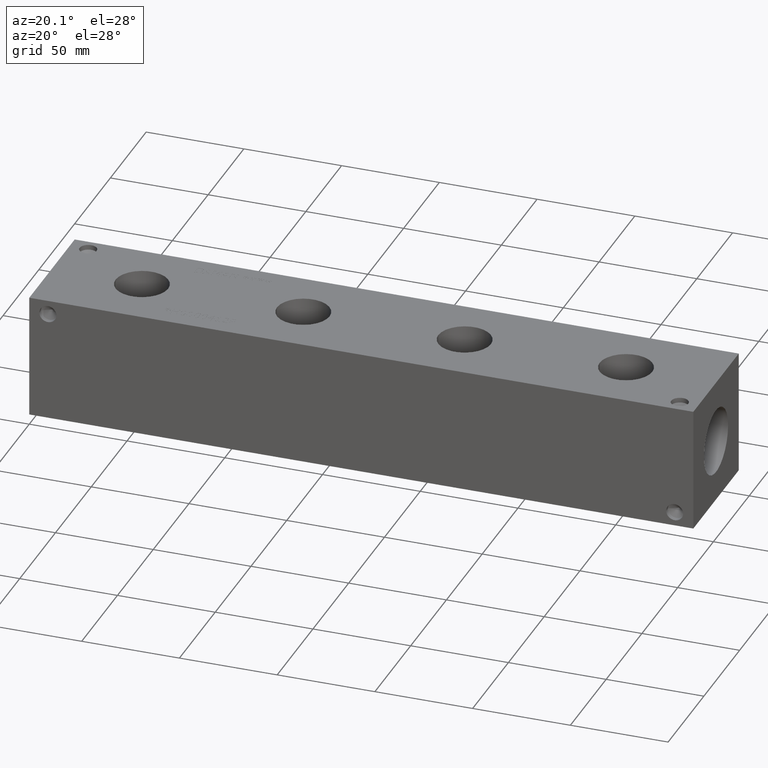
[diagram: clean part render]
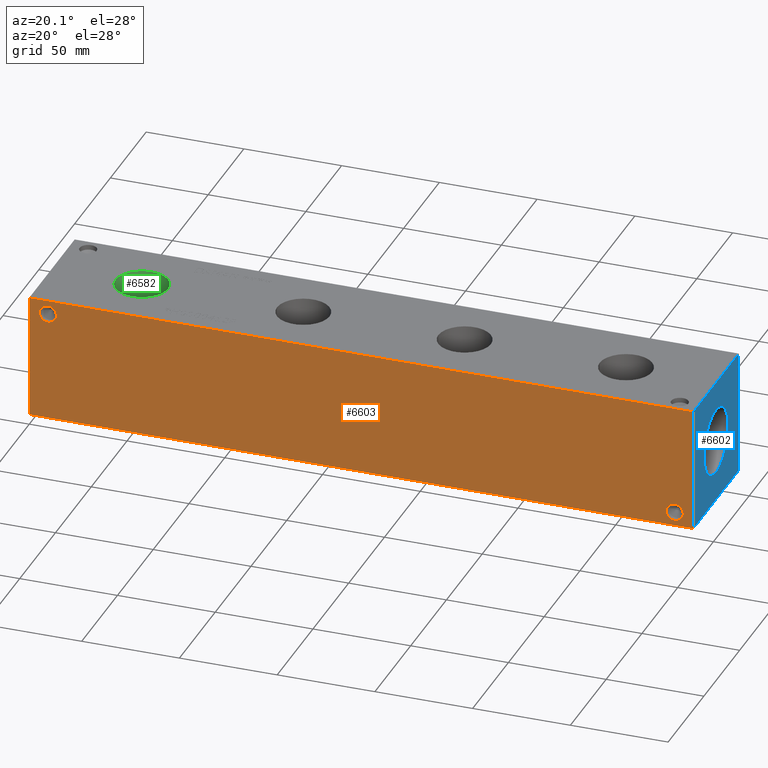
[diagram: same view with three faces highlighted in distinct colors, each labeled with its STEP entity id]
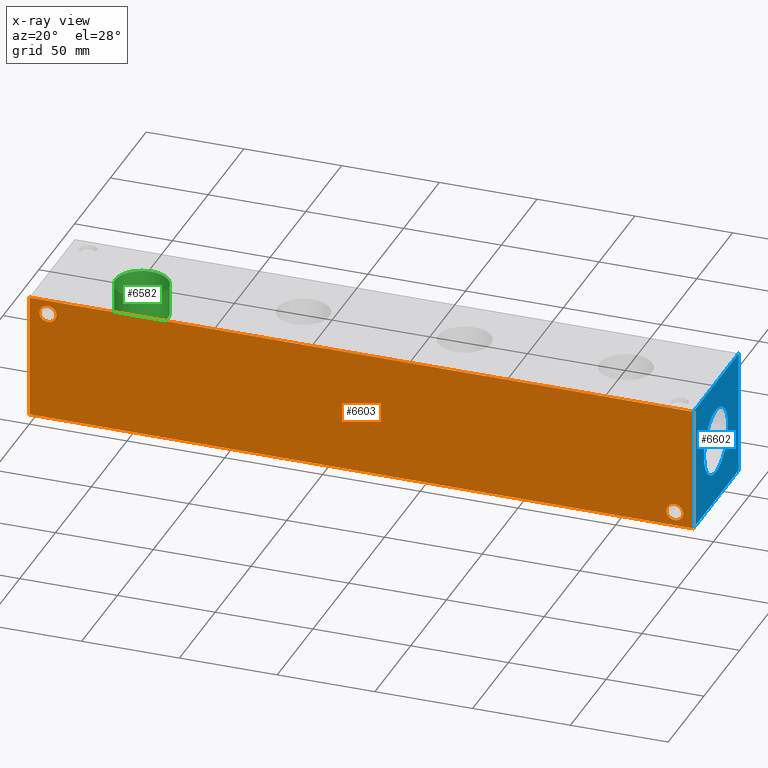
[diagram: x-ray of the same camera — body ghosted, the three highlighted faces saturated]
A machine part, auxiliary view with three faces highlighted in distinct colors.
The next image is the same camera in x-ray (body ghosted, the three faces saturated) — at least one of them is partly hidden behind the body in this view.
Their STEP definitions:

[orange] entity #6603 — the highlighted planar face has unit normal (0, -1, 0).
#54=CIRCLE('',#6855,4.3688);
#55=CIRCLE('',#6856,4.3688);
#58=CIRCLE('',#6861,4.3688);
#59=CIRCLE('',#6862,4.3688);
#140=FACE_BOUND('',#1079,.T.);
#141=FACE_BOUND('',#1080,.T.);
#370=PLANE('',#6932);
#703=FACE_OUTER_BOUND('',#1078,.T.);
#1078=EDGE_LOOP('',(#5895,#5896,#5897,#5898));
#1079=EDGE_LOOP('',(#5899,#5900));
#1080=EDGE_LOOP('',(#5901,#5902));
#1355=LINE('',#9968,#2042);
#1763=LINE('',#11069,#2450);
#1768=LINE('',#11078,#2455);
#1769=LINE('',#11080,#2456);
#2042=VECTOR('',#7367,10.);
#2450=VECTOR('',#8237,10.);
#2455=VECTOR('',#8246,10.);
#2456=VECTOR('',#8249,10.);
#2881=VERTEX_POINT('',#9966);
#2882=VERTEX_POINT('',#9967);
#3162=VERTEX_POINT('',#10913);
#3163=VERTEX_POINT('',#10914);
#3167=VERTEX_POINT('',#10926);
#3168=VERTEX_POINT('',#10927);
#3216=VERTEX_POINT('',#11067);
#3218=VERTEX_POINT('',#11076);
#3627=EDGE_CURVE('',#2881,#2882,#1355,.T.);
#4039=EDGE_CURVE('',#3162,#3163,#54,.T.);
#4040=EDGE_CURVE('',#3163,#3162,#55,.T.);
#4045=EDGE_CURVE('',#3167,#3168,#58,.T.);
#4046=EDGE_CURVE('',#3168,#3167,#59,.T.);
#4109=EDGE_CURVE('',#3216,#2881,#1763,.T.);
#4114=EDGE_CURVE('',#3218,#2882,#1768,.T.);
#4115=EDGE_CURVE('',#3216,#3218,#1769,.T.);
#5895=ORIENTED_EDGE('',*,*,#4115,.T.);
#5896=ORIENTED_EDGE('',*,*,#4114,.T.);
#5897=ORIENTED_EDGE('',*,*,#3627,.F.);
#5898=ORIENTED_EDGE('',*,*,#4109,.F.);
#5899=ORIENTED_EDGE('',*,*,#4039,.T.);
#5900=ORIENTED_EDGE('',*,*,#4040,.T.);
#5901=ORIENTED_EDGE('',*,*,#4045,.T.);
#5902=ORIENTED_EDGE('',*,*,#4046,.T.);
#6603=ADVANCED_FACE('',(#703,#140,#141),#370,.T.);
#6855=AXIS2_PLACEMENT_3D('',#10915,#8061,#8062);
#6856=AXIS2_PLACEMENT_3D('',#10916,#8063,#8064);
#6861=AXIS2_PLACEMENT_3D('',#10928,#8075,#8076);
#6862=AXIS2_PLACEMENT_3D('',#10929,#8077,#8078);
#6932=AXIS2_PLACEMENT_3D('',#11079,#8247,#8248);
#7367=DIRECTION('',(1.,0.,0.));
#8061=DIRECTION('center_axis',(0.,1.,0.));
#8062=DIRECTION('ref_axis',(1.,0.,0.));
#8063=DIRECTION('center_axis',(0.,1.,0.));
#8064=DIRECTION('ref_axis',(1.,0.,0.));
#8075=DIRECTION('center_axis',(0.,1.,0.));
#8076=DIRECTION('ref_axis',(1.,0.,0.));
#8077=DIRECTION('center_axis',(0.,1.,0.));
#8078=DIRECTION('ref_axis',(1.,0.,0.));
#8237=DIRECTION('',(0.,0.,1.));
#8246=DIRECTION('',(0.,0.,1.));
#8247=DIRECTION('center_axis',(0.,-1.,0.));
#8248=DIRECTION('ref_axis',(1.,0.,0.));
#8249=DIRECTION('',(1.,0.,0.));
#9966=CARTESIAN_POINT('',(0.,0.,63.5));
#9967=CARTESIAN_POINT('',(339.725,0.,63.5));
#9968=CARTESIAN_POINT('',(0.,0.,63.5));
#10913=CARTESIAN_POINT('',(13.8938,0.,56.3626));
#10914=CARTESIAN_POINT('',(5.1562,0.,56.3626));
#10915=CARTESIAN_POINT('Origin',(9.525,0.,56.3626));
#10916=CARTESIAN_POINT('Origin',(9.525,0.,56.3626));
#10926=CARTESIAN_POINT('',(334.5688,0.,7.1374));
#10927=CARTESIAN_POINT('',(325.8312,0.,7.1374));
#10928=CARTESIAN_POINT('Origin',(330.2,0.,7.1374));
#10929=CARTESIAN_POINT('Origin',(330.2,0.,7.1374));
#11067=CARTESIAN_POINT('',(0.,0.,0.));
#11069=CARTESIAN_POINT('',(0.,0.,0.));
#11076=CARTESIAN_POINT('',(339.725,0.,0.));
#11078=CARTESIAN_POINT('',(339.725,0.,0.));
#11079=CARTESIAN_POINT('Origin',(0.,0.,0.));
#11080=CARTESIAN_POINT('',(0.,0.,0.));

[blue] entity #6602 — the highlighted planar face has unit normal (1, 0, 0).
#89=CIRCLE('',#6915,16.8529);
#90=CIRCLE('',#6916,16.8529);
#139=FACE_BOUND('',#1077,.T.);
#369=PLANE('',#6931);
#702=FACE_OUTER_BOUND('',#1076,.T.);
#1076=EDGE_LOOP('',(#5889,#5890,#5891,#5892));
#1077=EDGE_LOOP('',(#5893,#5894));
#1356=LINE('',#9970,#2043);
#1766=LINE('',#11074,#2453);
#1767=LINE('',#11077,#2454);
#1768=LINE('',#11078,#2455);
#2043=VECTOR('',#7368,10.);
#2453=VECTOR('',#8242,10.);
#2454=VECTOR('',#8245,10.);
#2455=VECTOR('',#8246,10.);
#2882=VERTEX_POINT('',#9967);
#2883=VERTEX_POINT('',#9969);
#3205=VERTEX_POINT('',#11036);
#3206=VERTEX_POINT('',#11037);
#3217=VERTEX_POINT('',#11072);
#3218=VERTEX_POINT('',#11076);
#3628=EDGE_CURVE('',#2882,#2883,#1356,.T.);
#4094=EDGE_CURVE('',#3205,#3206,#89,.T.);
#4095=EDGE_CURVE('',#3206,#3205,#90,.T.);
#4112=EDGE_CURVE('',#3217,#2883,#1766,.T.);
#4113=EDGE_CURVE('',#3218,#3217,#1767,.T.);
#4114=EDGE_CURVE('',#3218,#2882,#1768,.T.);
#5889=ORIENTED_EDGE('',*,*,#4113,.T.);
#5890=ORIENTED_EDGE('',*,*,#4112,.T.);
#5891=ORIENTED_EDGE('',*,*,#3628,.F.);
#5892=ORIENTED_EDGE('',*,*,#4114,.F.);
#5893=ORIENTED_EDGE('',*,*,#4094,.T.);
#5894=ORIENTED_EDGE('',*,*,#4095,.T.);
#6602=ADVANCED_FACE('',(#702,#139),#369,.T.);
#6915=AXIS2_PLACEMENT_3D('',#11038,#8201,#8202);
#6916=AXIS2_PLACEMENT_3D('',#11039,#8203,#8204);
#6931=AXIS2_PLACEMENT_3D('',#11075,#8243,#8244);
#7368=DIRECTION('',(0.,1.,0.));
#8201=DIRECTION('center_axis',(-1.,0.,0.));
#8202=DIRECTION('ref_axis',(0.,1.,0.));
#8203=DIRECTION('center_axis',(-1.,0.,0.));
#8204=DIRECTION('ref_axis',(0.,1.,0.));
#8242=DIRECTION('',(0.,0.,1.));
#8243=DIRECTION('center_axis',(1.,0.,0.));
#8244=DIRECTION('ref_axis',(0.,1.,0.));
#8245=DIRECTION('',(0.,1.,0.));
#8246=DIRECTION('',(0.,0.,1.));
#9967=CARTESIAN_POINT('',(339.725,0.,63.5));
#9969=CARTESIAN_POINT('',(339.725,63.5,63.5));
#9970=CARTESIAN_POINT('',(339.725,0.,63.5));
#11036=CARTESIAN_POINT('',(339.725,48.6029,31.75));
#11037=CARTESIAN_POINT('',(339.725,14.8971,31.75));
#11038=CARTESIAN_POINT('Origin',(339.725,31.75,31.75));
#11039=CARTESIAN_POINT('Origin',(339.725,31.75,31.75));
#11072=CARTESIAN_POINT('',(339.725,63.5,0.));
#11074=CARTESIAN_POINT('',(339.725,63.5,0.));
#11075=CARTESIAN_POINT('Origin',(339.725,0.,0.));
#11076=CARTESIAN_POINT('',(339.725,0.,0.));
#11077=CARTESIAN_POINT('',(339.725,0.,0.));
#11078=CARTESIAN_POINT('',(339.725,0.,0.));

[green] entity #6582 — the highlighted cylindrical surface (bore or boss wall) has radius 13.462 mm, axis along (0, 0, 1).
#20=CYLINDRICAL_SURFACE('',#6887,13.462);
#44=CIRCLE('',#6703,13.462);
#45=CIRCLE('',#6704,13.462);
#71=CIRCLE('',#6884,13.462);
#72=CIRCLE('',#6885,13.462);
#682=FACE_OUTER_BOUND('',#1051,.T.);
#1051=EDGE_LOOP('',(#5796,#5797,#5798,#5799,#5800,#5801));
#1748=LINE('',#10982,#2435);
#2435=VECTOR('',#8138,13.462);
#2889=VERTEX_POINT('',#9982);
#2890=VERTEX_POINT('',#9983);
#3184=VERTEX_POINT('',#10975);
#3185=VERTEX_POINT('',#10976);
#3635=EDGE_CURVE('',#2889,#2890,#44,.T.);
#3636=EDGE_CURVE('',#2890,#2889,#45,.T.);
#4067=EDGE_CURVE('',#3184,#3185,#71,.T.);
#4068=EDGE_CURVE('',#3185,#3184,#72,.T.);
#4070=EDGE_CURVE('',#2890,#3185,#1748,.T.);
#5796=ORIENTED_EDGE('',*,*,#3635,.F.);
#5797=ORIENTED_EDGE('',*,*,#3636,.F.);
#5798=ORIENTED_EDGE('',*,*,#4070,.T.);
#5799=ORIENTED_EDGE('',*,*,#4067,.F.);
#5800=ORIENTED_EDGE('',*,*,#4068,.F.);
#5801=ORIENTED_EDGE('',*,*,#4070,.F.);
#6582=ADVANCED_FACE('',(#682),#20,.F.);
#6703=AXIS2_PLACEMENT_3D('',#9984,#7379,#7380);
#6704=AXIS2_PLACEMENT_3D('',#9985,#7381,#7382);
#6884=AXIS2_PLACEMENT_3D('',#10977,#8130,#8131);
#6885=AXIS2_PLACEMENT_3D('',#10978,#8132,#8133);
#6887=AXIS2_PLACEMENT_3D('',#10981,#8136,#8137);
#7379=DIRECTION('center_axis',(0.,0.,-1.));
#7380=DIRECTION('ref_axis',(1.,0.,0.));
#7381=DIRECTION('center_axis',(0.,0.,-1.));
#7382=DIRECTION('ref_axis',(1.,0.,0.));
#8130=DIRECTION('center_axis',(0.,0.,1.));
#8131=DIRECTION('ref_axis',(1.,0.,0.));
#8132=DIRECTION('center_axis',(0.,0.,1.));
#8133=DIRECTION('ref_axis',(1.,0.,0.));
#8136=DIRECTION('center_axis',(0.,0.,1.));
#8137=DIRECTION('ref_axis',(1.,0.,0.));
#8138=DIRECTION('',(0.,0.,-1.));
#9982=CARTESIAN_POINT('',(59.4868,31.75,63.5));
#9983=CARTESIAN_POINT('',(32.5628,31.75,63.5));
#9984=CARTESIAN_POINT('Origin',(46.0248,31.75,63.5));
#9985=CARTESIAN_POINT('Origin',(46.0248,31.75,63.5));
#10975=CARTESIAN_POINT('',(59.4868,31.75,47.6504));
#10976=CARTESIAN_POINT('',(32.5628,31.75,47.6504));
#10977=CARTESIAN_POINT('Origin',(46.0248,31.75,47.6504));
#10978=CARTESIAN_POINT('Origin',(46.0248,31.75,47.6504));
#10981=CARTESIAN_POINT('Origin',(46.0248,31.75,55.5752));
#10982=CARTESIAN_POINT('',(32.5628,31.75,55.5752));